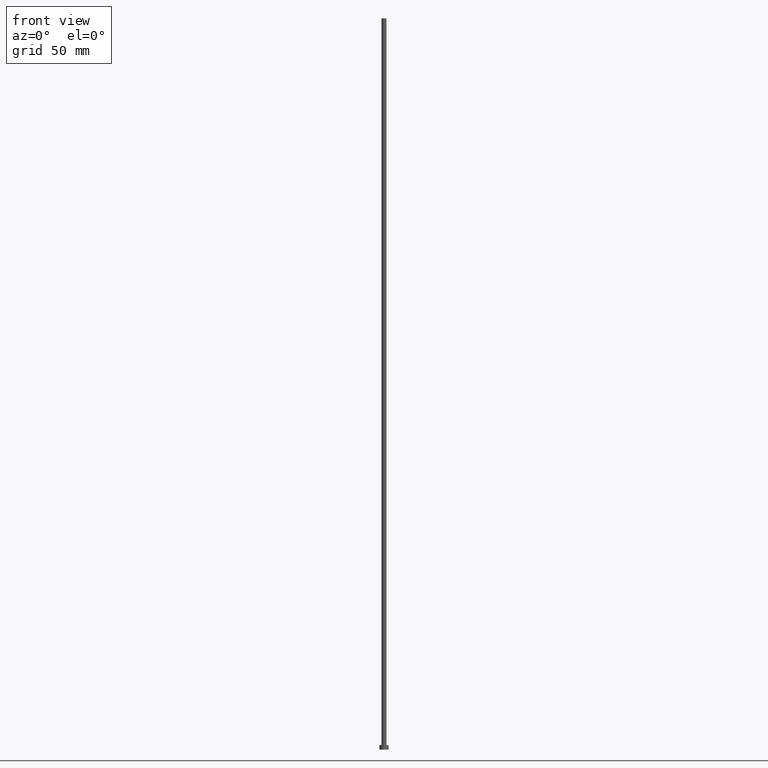
[diagram: clean part render]
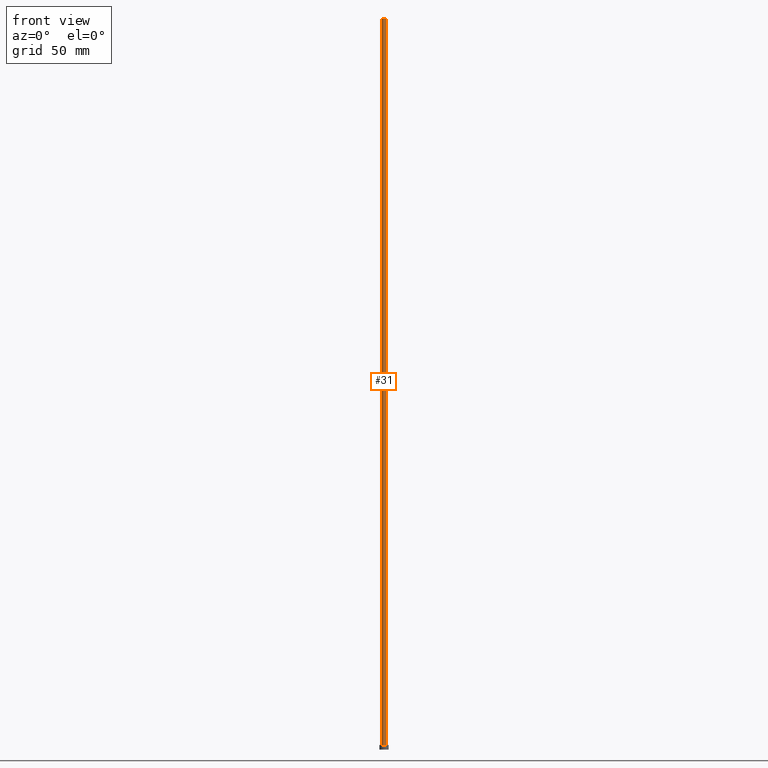
[diagram: same view with one face highlighted and labeled with its STEP entity id]
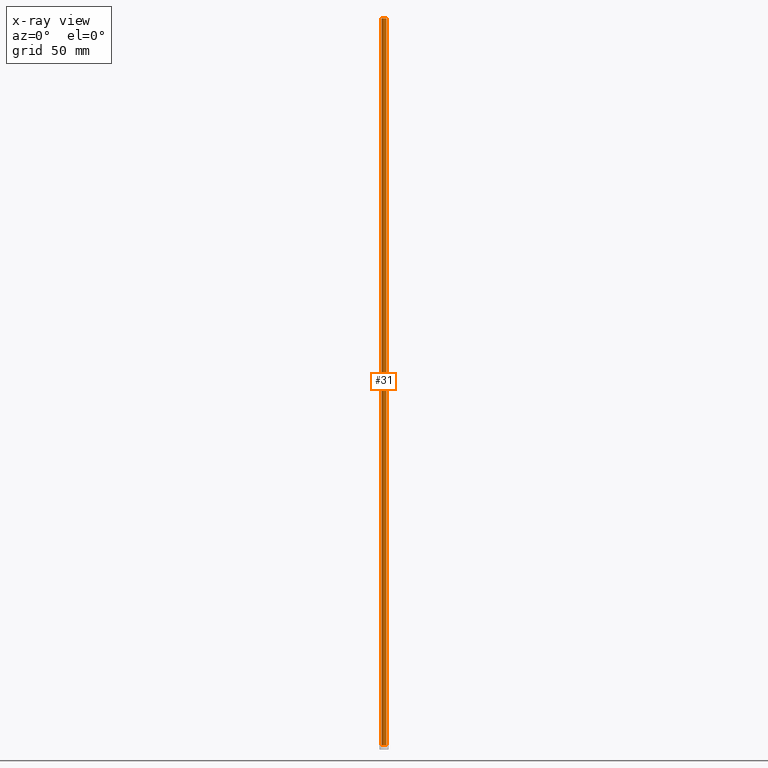
[diagram: x-ray of the same camera — body ghosted, the highlighted face saturated]
A machine part, front view. The second image highlights one B-rep face of the part: STEP entity #31.
The next image is the same camera in x-ray: the body ghosted, the highlighted face saturated — about 0% of this face is hidden behind the body in this view.
In plain terms, the highlighted cylindrical surface (edge-blend (fillet) strip) has radius 1.1 mm, axis along (-0, -0, -1).
Its self-contained STEP definition (entity closure, byte-faithful):
#1 = CIRCLE ( 'NONE', #244, 1.100000000000000089 ) ;
#17 = CARTESIAN_POINT ( 'NONE',  ( 1.100000000000000089, 1.347111479062088503E-16, 315.0000000000000000 ) ) ;
#18 = EDGE_CURVE ( 'NONE', #232, #72, #33, .T. ) ;
#29 = DIRECTION ( 'NONE',  ( 0.000000000000000000, 0.000000000000000000, 1.000000000000000000 ) ) ;
#30 = AXIS2_PLACEMENT_3D ( 'NONE', #176, #235, #133 ) ;
#31 = ADVANCED_FACE ( 'NONE', ( #238 ), #37, .T. ) ;
#33 = LINE ( 'NONE', #17, #179 ) ;
#37 = CYLINDRICAL_SURFACE ( 'NONE', #30, 1.100000000000000089 ) ;
#41 = CARTESIAN_POINT ( 'NONE',  ( -1.100000000000000089, 0.000000000000000000, 2.000000000000000000 ) ) ;
#53 = VERTEX_POINT ( 'NONE', #214 ) ;
#62 = LINE ( 'NONE', #199, #201 ) ;
#72 = VERTEX_POINT ( 'NONE', #149 ) ;
#79 = DIRECTION ( 'NONE',  ( 1.000000000000000000, 0.000000000000000000, 0.000000000000000000 ) ) ;
#82 = DIRECTION ( 'NONE',  ( 0.000000000000000000, 0.000000000000000000, 1.000000000000000000 ) ) ;
#85 = ORIENTED_EDGE ( 'NONE', *, *, #148, .T. ) ;
#87 = DIRECTION ( 'NONE',  ( -0.000000000000000000, -0.000000000000000000, -1.000000000000000000 ) ) ;
#92 = EDGE_CURVE ( 'NONE', #53, #232, #1, .T. ) ;
#133 = DIRECTION ( 'NONE',  ( -1.000000000000000000, 0.000000000000000000, 0.000000000000000000 ) ) ;
#139 = EDGE_CURVE ( 'NONE', #53, #143, #62, .T. ) ;
#141 = EDGE_LOOP ( 'NONE', ( #163, #248, #210, #85 ) ) ;
#143 = VERTEX_POINT ( 'NONE', #41 ) ;
#148 = EDGE_CURVE ( 'NONE', #143, #72, #200, .T. ) ;
#149 = CARTESIAN_POINT ( 'NONE',  ( 1.100000000000000089, 1.347111479062088503E-16, 2.000000000000000000 ) ) ;
#163 = ORIENTED_EDGE ( 'NONE', *, *, #18, .F. ) ;
#168 = AXIS2_PLACEMENT_3D ( 'NONE', #229, #29, #79 ) ;
#176 = CARTESIAN_POINT ( 'NONE',  ( 0.000000000000000000, 0.000000000000000000, 315.0000000000000000 ) ) ;
#179 = VECTOR ( 'NONE', #87, 1000.000000000000000 ) ;
#199 = CARTESIAN_POINT ( 'NONE',  ( -1.100000000000000089, 0.000000000000000000, 315.0000000000000000 ) ) ;
#200 = CIRCLE ( 'NONE', #168, 1.100000000000000089 ) ;
#201 = VECTOR ( 'NONE', #225, 1000.000000000000000 ) ;
#207 = CARTESIAN_POINT ( 'NONE',  ( 1.100000000000000089, 1.347111479062088503E-16, 315.0000000000000000 ) ) ;
#210 = ORIENTED_EDGE ( 'NONE', *, *, #139, .T. ) ;
#214 = CARTESIAN_POINT ( 'NONE',  ( -1.100000000000000089, 0.000000000000000000, 315.0000000000000000 ) ) ;
#225 = DIRECTION ( 'NONE',  ( -0.000000000000000000, -0.000000000000000000, -1.000000000000000000 ) ) ;
#227 = CARTESIAN_POINT ( 'NONE',  ( 0.000000000000000000, 0.000000000000000000, 315.0000000000000000 ) ) ;
#229 = CARTESIAN_POINT ( 'NONE',  ( 0.000000000000000000, 0.000000000000000000, 2.000000000000000000 ) ) ;
#232 = VERTEX_POINT ( 'NONE', #207 ) ;
#235 = DIRECTION ( 'NONE',  ( -0.000000000000000000, -0.000000000000000000, -1.000000000000000000 ) ) ;
#238 = FACE_OUTER_BOUND ( 'NONE', #141, .T. ) ;
#244 = AXIS2_PLACEMENT_3D ( 'NONE', #227, #82, #246 ) ;
#246 = DIRECTION ( 'NONE',  ( 1.000000000000000000, 0.000000000000000000, 0.000000000000000000 ) ) ;
#248 = ORIENTED_EDGE ( 'NONE', *, *, #92, .F. ) ;